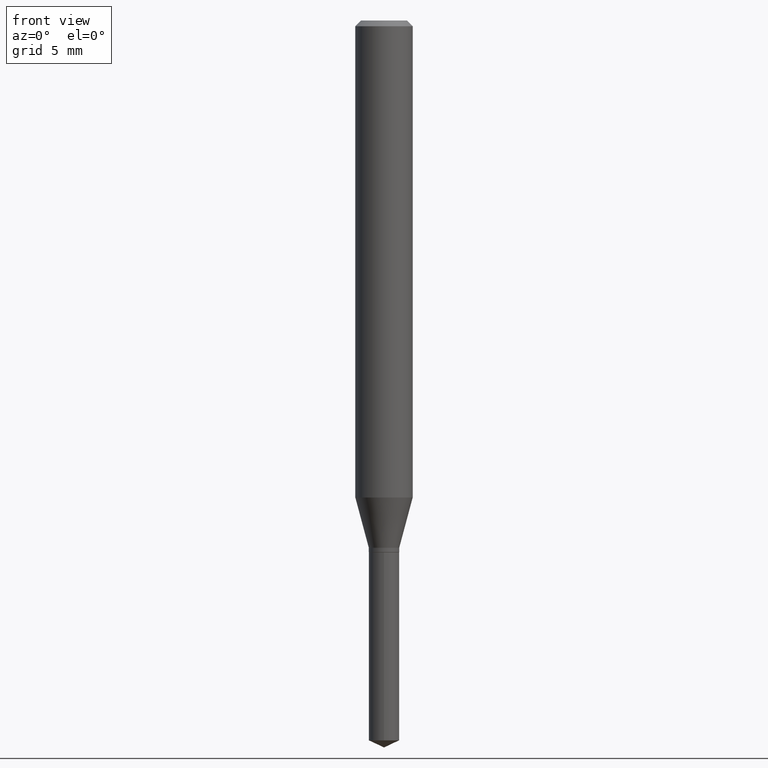
[diagram: clean part render]
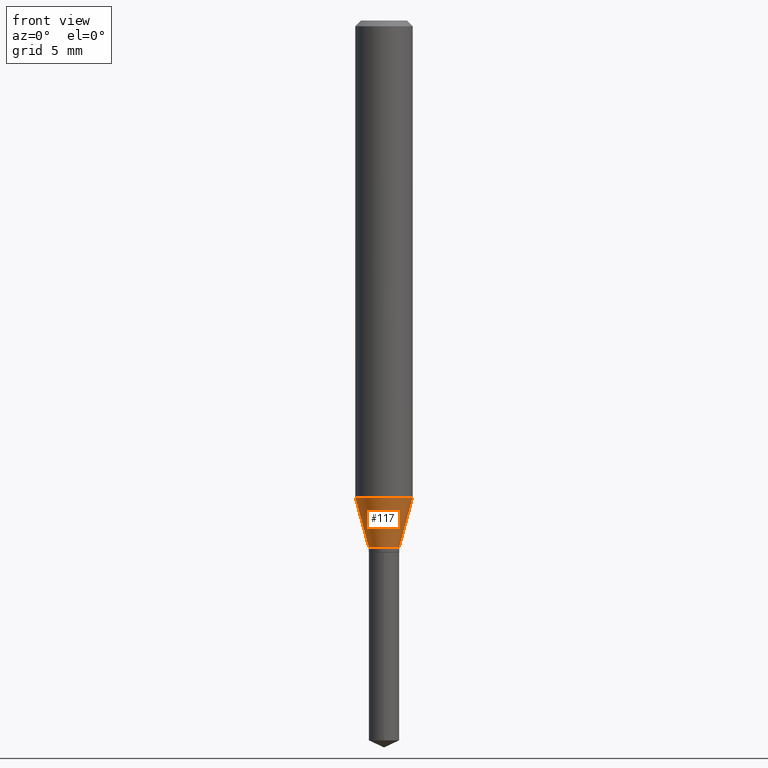
[diagram: same view with one face highlighted and labeled with its STEP entity id]
A machine part, front view. The second image highlights one B-rep face of the part: STEP entity #117.
In plain terms, the highlighted conical surface has half-angle 15 deg.
Its self-contained STEP definition (entity closure, byte-faithful):
#32 = CARTESIAN_POINT ( 'NONE',  ( 2.653578201591491275E-29, -3.788606400778696929E-15, -1.085099999999999953 ) ) ;
#37 = DIRECTION ( 'NONE',  ( 1.000000000000000000, -6.982962677686266711E-15, 0.000000000000000000 ) ) ;
#50 = ORIENTED_EDGE ( 'NONE', *, *, #289, .T. ) ;
#58 = CARTESIAN_POINT ( 'NONE',  ( 0.05905000000000011628, -3.839357142326876836E-15, -0.9815355900899632724 ) ) ;
#69 = AXIS2_PLACEMENT_3D ( 'NONE', #32, #370, #487 ) ;
#75 = ORIENTED_EDGE ( 'NONE', *, *, #388, .T. ) ;
#89 = VECTOR ( 'NONE', #262, 39.37007874015748143 ) ;
#92 = VERTEX_POINT ( 'NONE', #58 ) ;
#94 = DIRECTION ( 'NONE',  ( -2.445468806185136597E-29, 3.491481338843145583E-15, 1.000000000000000000 ) ) ;
#97 = CIRCLE ( 'NONE', #169, 0.03130000000000000143 ) ;
#117 = ADVANCED_FACE ( 'NONE', ( #189 ), #226, .T. ) ;
#131 = DIRECTION ( 'NONE',  ( 0.2588190451025211281, 1.565188264969623940E-15, 0.9659258262890682012 ) ) ;
#143 = CIRCLE ( 'NONE', #354, 0.05905000000000011628 ) ;
#144 = VERTEX_POINT ( 'NONE', #341 ) ;
#157 = DIRECTION ( 'NONE',  ( 1.000000000000000000, -6.982962677686273810E-15, 0.000000000000000000 ) ) ;
#169 = AXIS2_PLACEMENT_3D ( 'NONE', #316, #94, #157 ) ;
#172 = EDGE_LOOP ( 'NONE', ( #474, #75, #50, #453 ) ) ;
#189 = FACE_OUTER_BOUND ( 'NONE', #172, .T. ) ;
#194 = EDGE_CURVE ( 'NONE', #384, #144, #376, .T. ) ;
#218 = EDGE_CURVE ( 'NONE', #144, #92, #143, .T. ) ;
#224 = CARTESIAN_POINT ( 'NONE',  ( -0.03130000000000000143, -3.566206524485785609E-15, -1.085099999999999953 ) ) ;
#226 = CONICAL_SURFACE ( 'NONE', #69, 0.03130000000000000143, 0.2617993877991497964 ) ;
#231 = CARTESIAN_POINT ( 'NONE',  ( -0.03130000000000000143, -3.581743616443637386E-15, -1.085099999999999953 ) ) ;
#236 = CARTESIAN_POINT ( 'NONE',  ( 0.03130000000000000143, -4.007173132590277064E-15, -1.085099999999999953 ) ) ;
#262 = DIRECTION ( 'NONE',  ( -0.2588190451025211281, 5.211531920934548675E-15, 0.9659258262890682012 ) ) ;
#289 = EDGE_CURVE ( 'NONE', #326, #92, #387, .T. ) ;
#313 = CARTESIAN_POINT ( 'NONE',  ( 0.03130000000000000143, -4.007173132590277064E-15, -1.085099999999999953 ) ) ;
#316 = CARTESIAN_POINT ( 'NONE',  ( 2.653578201591491275E-29, -3.788606400778696929E-15, -1.085099999999999953 ) ) ;
#326 = VERTEX_POINT ( 'NONE', #236 ) ;
#333 = DIRECTION ( 'NONE',  ( -2.445468806185136597E-29, 3.491481338843145583E-15, 1.000000000000000000 ) ) ;
#341 = CARTESIAN_POINT ( 'NONE',  ( -0.05905000000000011628, -3.007437710743162028E-15, -0.9815355900899632724 ) ) ;
#354 = AXIS2_PLACEMENT_3D ( 'NONE', #373, #333, #37 ) ;
#370 = DIRECTION ( 'NONE',  ( -2.445468806185136597E-29, 3.491481338843145583E-15, 1.000000000000000000 ) ) ;
#373 = CARTESIAN_POINT ( 'NONE',  ( 2.400314667725525909E-29, -3.427013196209501521E-15, -0.9815355900899632724 ) ) ;
#376 = LINE ( 'NONE', #224, #89 ) ;
#384 = VERTEX_POINT ( 'NONE', #231 ) ;
#387 = LINE ( 'NONE', #313, #465 ) ;
#388 = EDGE_CURVE ( 'NONE', #384, #326, #97, .T. ) ;
#453 = ORIENTED_EDGE ( 'NONE', *, *, #218, .F. ) ;
#465 = VECTOR ( 'NONE', #131, 39.37007874015748143 ) ;
#474 = ORIENTED_EDGE ( 'NONE', *, *, #194, .F. ) ;
#487 = DIRECTION ( 'NONE',  ( 1.000000000000000000, -6.982962677686273810E-15, 0.000000000000000000 ) ) ;